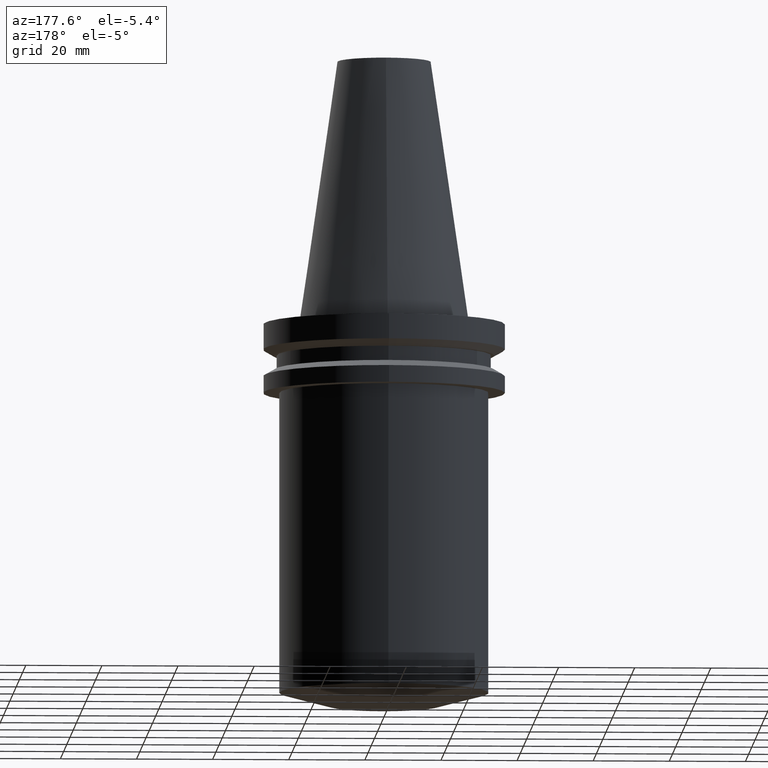
[diagram: clean part render]
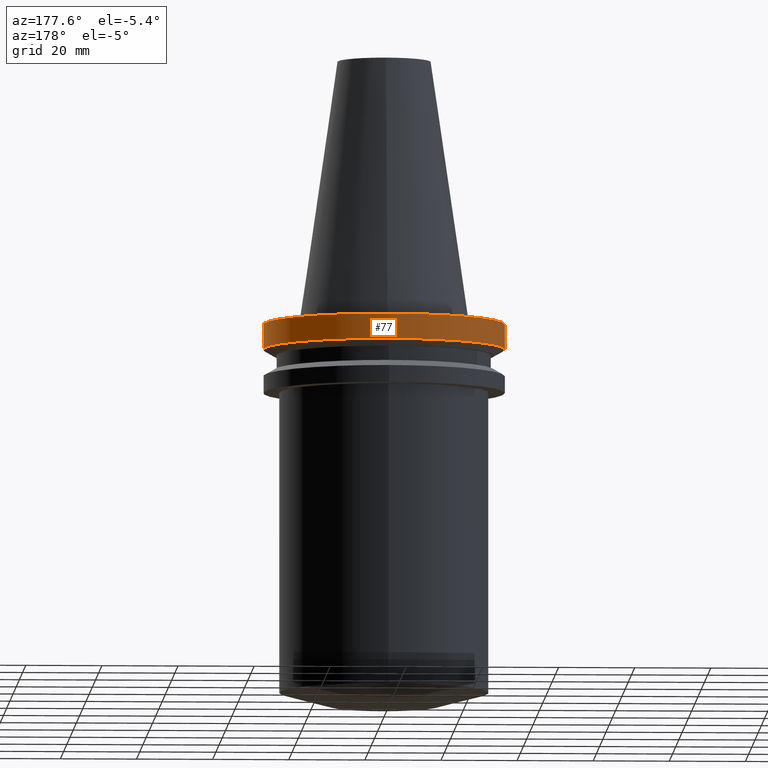
[diagram: same view with one face highlighted and labeled with its STEP entity id]
A machine part, auxiliary view. The second image highlights one B-rep face of the part: STEP entity #77.
In plain terms, the highlighted cylindrical surface (bore or boss wall) has radius 31.75 mm, axis along (0, 0, -1).
Its self-contained STEP definition (entity closure, byte-faithful):
#77=ADVANCED_FACE('Unnamed[1]',(#181,#182),#183,.T.);
#116=EDGE_CURVE('Unnamed[1]',#242,#242,#243,.T.);
#123=EDGE_CURVE('Unnamed[1]',#253,#253,#254,.T.);
#181=FACE_BOUND('',#315,.T.);
#182=FACE_BOUND('',#316,.T.);
#183=CYLINDRICAL_SURFACE('',#317,31.75);
#242=VERTEX_POINT('',#390);
#243=CIRCLE('',#391,31.75);
#253=VERTEX_POINT('',#404);
#254=CIRCLE('',#405,31.75);
#315=EDGE_LOOP('',(#456));
#316=EDGE_LOOP('',(#457));
#317=AXIS2_PLACEMENT_3D('',#458,#459,#460);
#390=CARTESIAN_POINT('',(4.65416804298617E-016,31.75,-7.60083323));
#391=AXIS2_PLACEMENT_3D('',#524,#525,#526);
#404=CARTESIAN_POINT('',(6.12323399573673E-017,31.75,-0.999999999999996));
#405=AXIS2_PLACEMENT_3D('',#536,#537,#538);
#456=ORIENTED_EDGE('',*,*,#116,.F.);
#457=ORIENTED_EDGE('',*,*,#123,.T.);
#458=CARTESIAN_POINT('',(2.63324572127992E-016,5.26649144255985E-016,-4.300416615));
#459=DIRECTION('',(6.12323399573677E-017,1.22464679914735E-016,-1.0));
#460=DIRECTION('',(-1.23259516440783E-032,1.0,1.22464679914735E-016));
#524=CARTESIAN_POINT('',(4.65416804298617E-016,9.30833608597234E-016,-7.60083323000001));
#525=DIRECTION('',(6.12323399573677E-017,1.22464679914735E-016,-1.0));
#526=DIRECTION('',(-1.23259516440783E-032,1.0,1.22464679914735E-016));
#536=CARTESIAN_POINT('',(6.12323399573677E-017,1.22464679914735E-016,-1.0));
#537=DIRECTION('',(6.12323399573677E-017,1.22464679914735E-016,-1.0));
#538=DIRECTION('',(-1.23259516440783E-032,1.0,1.22464679914735E-016));